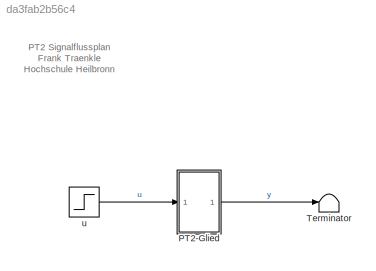
MODEL slx_da3fab2b56c4
KIND model
CONFIG AbsTol = auto
CONFIG EnableMultiTasking = on
CONFIG FixedStep = P_dt
CONFIG InitFcn = pt2_data;
CONFIG MaxStep = auto
CONFIG MinStep = auto
CONFIG RelTol = 1e-3
CONFIG SampleTimeConstraint = Unconstrained
CONFIG Solver = ode4
CONFIG SolverName = ode4
CONFIG StartTime = 0.0
CONFIG StopTime = 20e-3
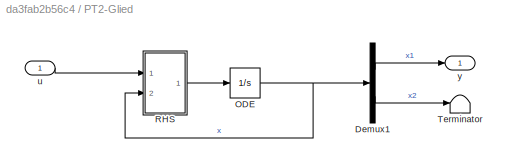
BLOCK [SubSystem] PT2-Glied
  Ports = [1, 1]
  RequestExecContextInheritance = off
BLOCK [Demux] PT2-Glied/Demux1
  DisplayOption = bar
  Outputs = 2
  Ports = [1, 2]
BLOCK [Integrator] PT2-Glied/ODE
  InitialCondition = [ P_x0 ; P_v0 ]
  Ports = [1, 1]
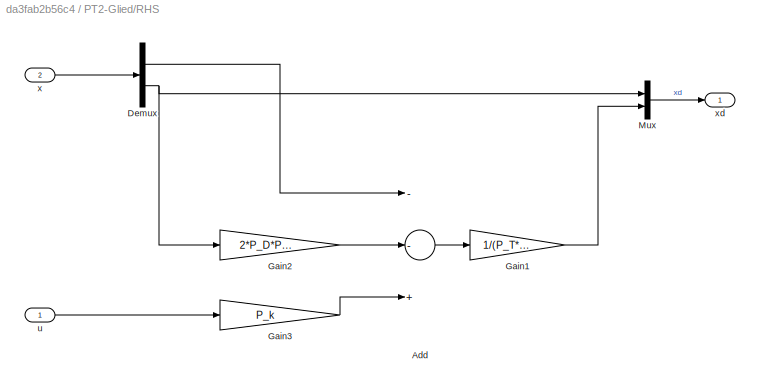
BLOCK [SubSystem] PT2-Glied/RHS
  Ports = [2, 1]
  RequestExecContextInheritance = off
BLOCK [Sum] PT2-Glied/RHS/Add
  InputSameDT = off
  Inputs = --+
  OutDataTypeStr = Inherit: Inherit via internal rule
  Ports = [3, 1]
  SaturateOnIntegerOverflow = off
BLOCK [Demux] PT2-Glied/RHS/Demux
  DisplayOption = bar
  Outputs = 2
  Ports = [1, 2]
BLOCK [Gain] PT2-Glied/RHS/Gain1
  Gain = 1/(P_T*P_T)
  OutDataTypeStr = Inherit: Inherit via internal rule
  ParamDataTypeStr = Inherit: Inherit via internal rule
  SaturateOnIntegerOverflow = off
BLOCK [Gain] PT2-Glied/RHS/Gain2
  Gain = 2*P_D*P_T
  OutDataTypeStr = Inherit: Inherit via internal rule
  ParamDataTypeStr = Inherit: Inherit via internal rule
  SaturateOnIntegerOverflow = off
BLOCK [Gain] PT2-Glied/RHS/Gain3
  Gain = P_k
  OutDataTypeStr = Inherit: Inherit via internal rule
  ParamDataTypeStr = Inherit: Inherit via internal rule
  SaturateOnIntegerOverflow = off
BLOCK [Mux] PT2-Glied/RHS/Mux
  DisplayOption = bar
  Inputs = 2
  Ports = [2, 1]
BLOCK [Inport] PT2-Glied/RHS/u
  IconDisplay = Port number
BLOCK [Inport] PT2-Glied/RHS/x
  IconDisplay = Port number
  Port = 2
BLOCK [Outport] PT2-Glied/RHS/xd
  IconDisplay = Port number
BLOCK [Terminator] PT2-Glied/Terminator
BLOCK [Inport] PT2-Glied/u
  IconDisplay = Port number
BLOCK [Outport] PT2-Glied/y
  IconDisplay = Port number
BLOCK [Terminator] Terminator
BLOCK [Step] u
  SampleTime = 0
  Time = 0
ANNOTATION (root): PT2 Signalflussplan Frank Traenkle Hochschule Heilbronn
LINE PT2-Glied/Demux1:1 -> PT2-Glied/y:1
LINE PT2-Glied/Demux1:2 -> PT2-Glied/Terminator:1
NET PT2-Glied/ODE:1 -> PT2-Glied/Demux1:1, PT2-Glied/RHS:2
LINE PT2-Glied/RHS/Add:1 -> PT2-Glied/RHS/Gain1:1
LINE PT2-Glied/RHS/Demux:1 -> PT2-Glied/RHS/Add:1
NET PT2-Glied/RHS/Demux:2 -> PT2-Glied/RHS/Gain2:1, PT2-Glied/RHS/Mux:1
LINE PT2-Glied/RHS/Gain1:1 -> PT2-Glied/RHS/Mux:2
LINE PT2-Glied/RHS/Gain2:1 -> PT2-Glied/RHS/Add:2
LINE PT2-Glied/RHS/Gain3:1 -> PT2-Glied/RHS/Add:3
LINE PT2-Glied/RHS/Mux:1 -> PT2-Glied/RHS/xd:1
LINE PT2-Glied/RHS/u:1 -> PT2-Glied/RHS/Gain3:1
LINE PT2-Glied/RHS/x:1 -> PT2-Glied/RHS/Demux:1
LINE PT2-Glied/RHS:1 -> PT2-Glied/ODE:1
LINE PT2-Glied/u:1 -> PT2-Glied/RHS:1
LINE PT2-Glied:1 -> Terminator:1
LINE u:1 -> PT2-Glied:1
note: NET lines group one-source signal fan-out (src -> all destinations, sorted); 1:1 wires keep LINE
